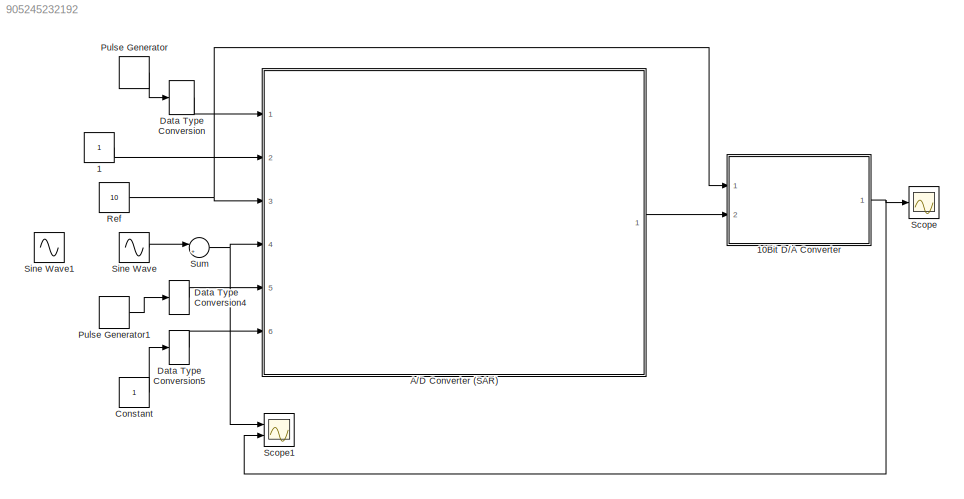
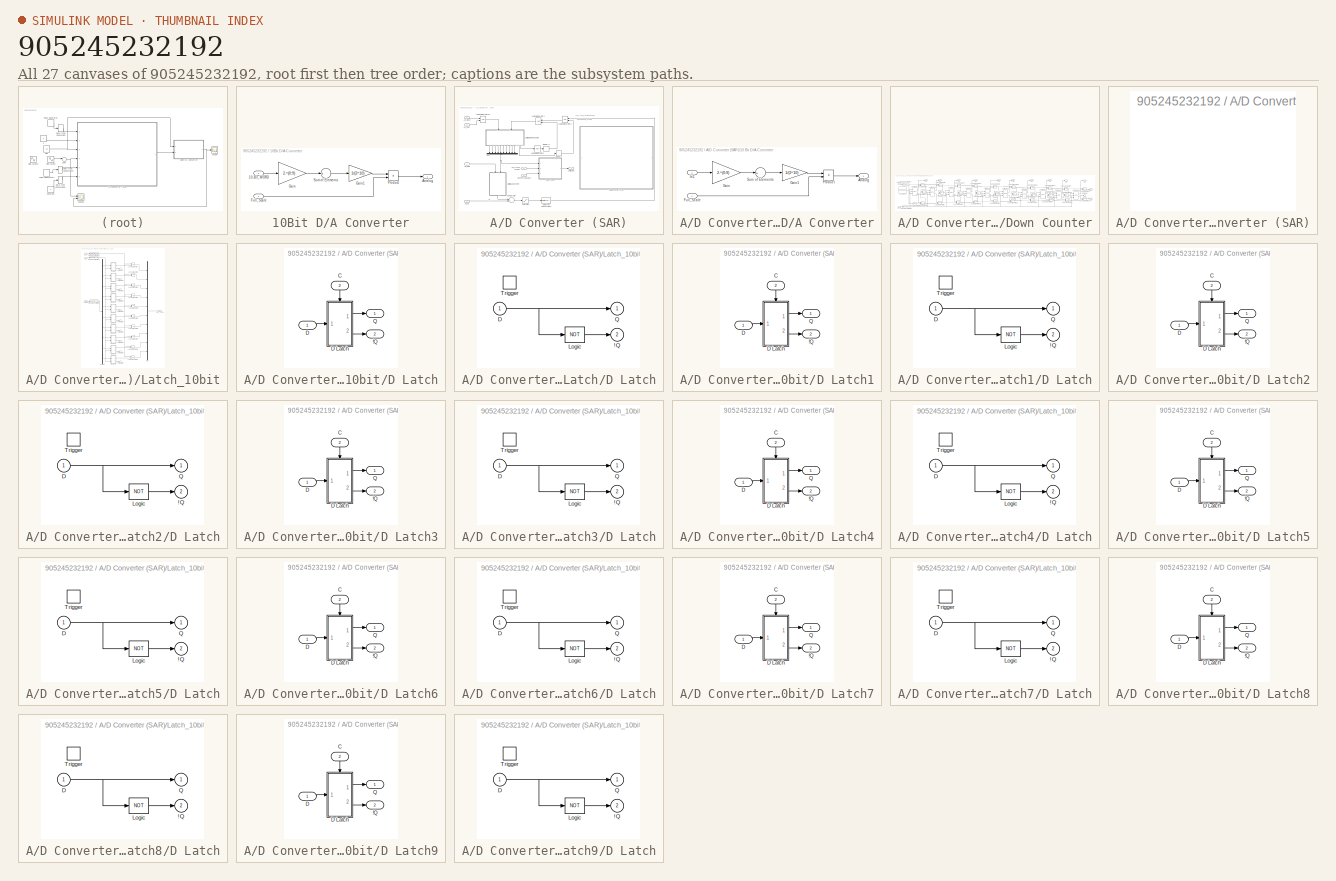
[diagram: thumbnail index - all 27 canvases of the model, root first then tree order]
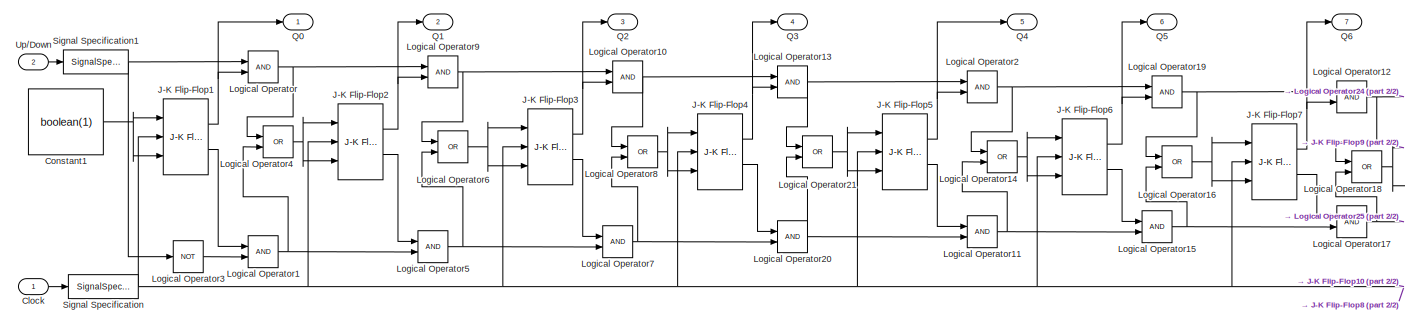
[diagram: A/D Converter (SAR)/10Bit Up/Down Counter - part 1/2, center side, full height]
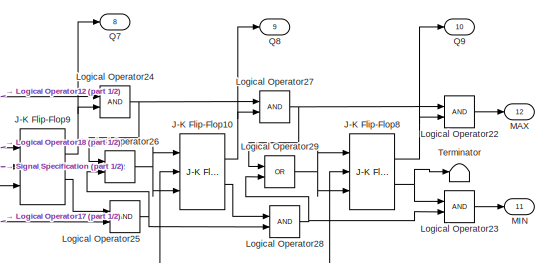
[diagram: A/D Converter (SAR)/10Bit Up/Down Counter - part 2/2, middle right region]
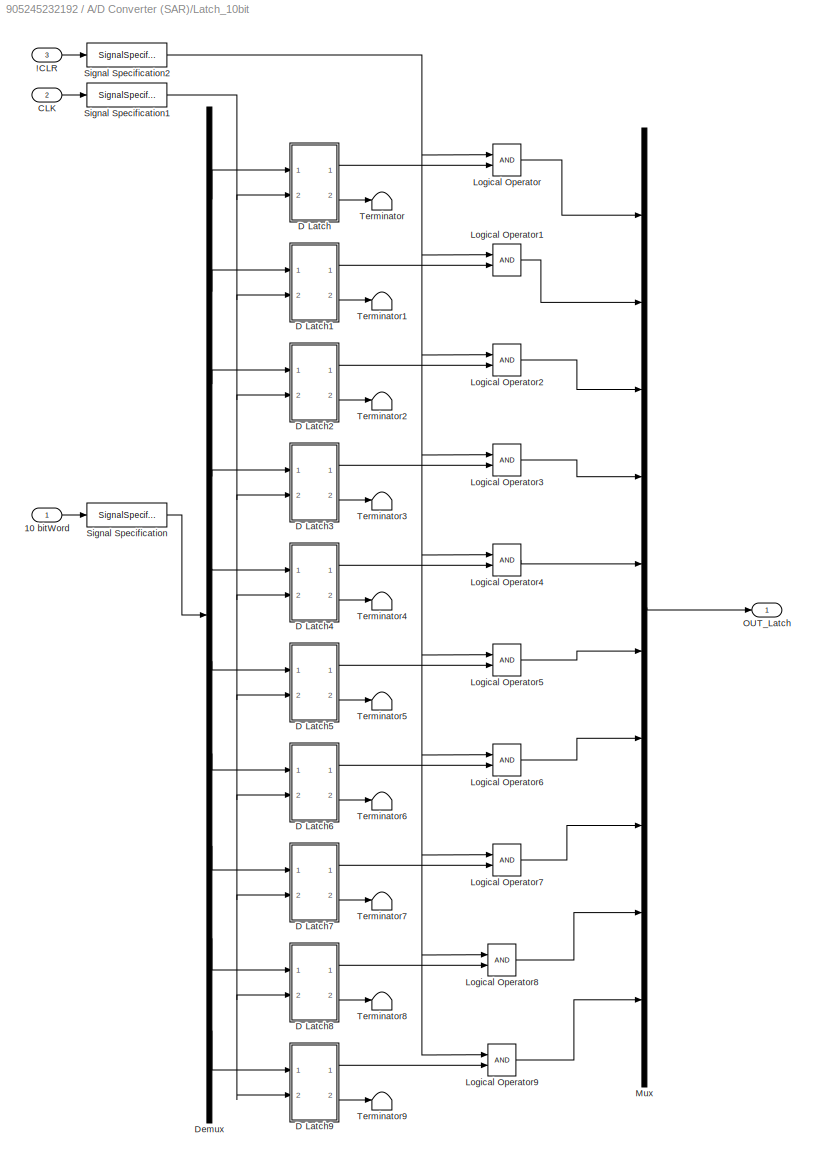
MODEL slx_905245232192
KIND model
CONFIG AbsTol = auto
CONFIG FixedStep = 1/255/2
CONFIG MaxStep = auto
CONFIG MinStep = auto
CONFIG RelTol = 1e-3
CONFIG SampleTimeConstraint = Unconstrained
CONFIG Solver = ode45
CONFIG SolverMode = Auto
CONFIG SolverName = ode45
CONFIG StartTime = 0.0
CONFIG StopTime = inf
BLOCK [Constant] 1
BLOCK [SubSystem] 10Bit D//A Converter
  AncestorBlock = Digital_8bit_Library/8Bit D//A Converter
  Ports = [2, 1]
  RequestExecContextInheritance = off
  Variant = off
BLOCK [Inport] 10Bit D//A Converter/10-Bit_WORD
  IconDisplay = Port number
  Port = 2
BLOCK [Outport] 10Bit D//A Converter/Analog
  IconDisplay = Port number
BLOCK [Inport] 10Bit D//A Converter/Full_Scale
  IconDisplay = Port number
BLOCK [Gain] 10Bit D//A Converter/Gain
  Gain = 2.^(0:9)
  OutDataTypeStr = Inherit: Inherit via internal rule
  ParamDataTypeStr = Inherit: Inherit via internal rule
  SaturateOnIntegerOverflow = off
BLOCK [Gain] 10Bit D//A Converter/Gain1
  Gain = 1/(2^10)
  OutDataTypeStr = Inherit: Inherit via internal rule
  ParamDataTypeStr = Inherit: Inherit via internal rule
  SaturateOnIntegerOverflow = off
BLOCK [Product] 10Bit D//A Converter/Product
  InputSameDT = off
  OutDataTypeStr = Inherit: Inherit via internal rule
  Ports = [2, 1]
  SaturateOnIntegerOverflow = off
BLOCK [Sum] 10Bit D//A Converter/Sum of Elements
  InputSameDT = off
  Inputs = +
  OutDataTypeStr = Inherit: Inherit via internal rule
  Ports = [1, 1]
  SaturateOnIntegerOverflow = off
BLOCK [SubSystem] A//D Converter (SAR)
  Ports = [6, 1]
  RequestExecContextInheritance = off
  Variant = off
BLOCK [SubSystem] A//D Converter (SAR)/10 Bit D//A Converter
  AncestorBlock = Digital_8bit_Library/8Bit D//A Converter
  Ports = [2, 1]
  RequestExecContextInheritance = off
  Variant = off
BLOCK [Outport] A//D Converter (SAR)/10 Bit D//A Converter/Analog
  IconDisplay = Port number
BLOCK [Inport] A//D Converter (SAR)/10 Bit D//A Converter/Full_Scale
  IconDisplay = Port number
BLOCK [Gain] A//D Converter (SAR)/10 Bit D//A Converter/Gain
  Gain = 2.^(0:9)
  OutDataTypeStr = Inherit: Inherit via internal rule
  ParamDataTypeStr = Inherit: Inherit via internal rule
  SaturateOnIntegerOverflow = off
BLOCK [Gain] A//D Converter (SAR)/10 Bit D//A Converter/Gain1
  Gain = 1/(2^10)
  OutDataTypeStr = Inherit: Inherit via internal rule
  ParamDataTypeStr = Inherit: Inherit via internal rule
  SaturateOnIntegerOverflow = off
BLOCK [Inport] A//D Converter (SAR)/10 Bit D//A Converter/In1
  IconDisplay = Port number
  Port = 2
BLOCK [Product] A//D Converter (SAR)/10 Bit D//A Converter/Product
  InputSameDT = off
  OutDataTypeStr = Inherit: Inherit via internal rule
  Ports = [2, 1]
  SaturateOnIntegerOverflow = off
BLOCK [Sum] A//D Converter (SAR)/10 Bit D//A Converter/Sum of Elements
  InputSameDT = off
  Inputs = +
  OutDataTypeStr = Inherit: Inherit via internal rule
  Ports = [1, 1]
  SaturateOnIntegerOverflow = off
BLOCK [SubSystem] A//D Converter (SAR)/10Bit Up//Down Counter
  AncestorBlock = Digital_8bit_Library/8Bit Up//Down \nCounter
  Ports = [2, 12]
  RequestExecContextInheritance = off
  Variant = off
BLOCK [Inport] A//D Converter (SAR)/10Bit Up//Down Counter/Clock
  IconDisplay = Port number
BLOCK [Constant] A//D Converter (SAR)/10Bit Up//Down Counter/Constant1
  Value = boolean(1)
BLOCK [Reference] A//D Converter (SAR)/10Bit Up//Down Counter/J-K Flip-Flop1  REF=simulink_extras/Flip Flops/J-K
Flip-Flop
  Ports = [3, 2]
  SourceBlock = simulink_extras/Flip Flops/J-K\nFlip-Flop
  SourceType = JKFlipFlop
BLOCK [Reference] A//D Converter (SAR)/10Bit Up//Down Counter/J-K Flip-Flop10  REF=simulink_extras/Flip Flops/J-K
Flip-Flop
  Ports = [3, 2]
  SourceBlock = simulink_extras/Flip Flops/J-K\nFlip-Flop
  SourceType = JKFlipFlop
BLOCK [Reference] A//D Converter (SAR)/10Bit Up//Down Counter/J-K Flip-Flop2  REF=simulink_extras/Flip Flops/J-K
Flip-Flop
  Ports = [3, 2]
  SourceBlock = simulink_extras/Flip Flops/J-K\nFlip-Flop
  SourceType = JKFlipFlop
BLOCK [Reference] A//D Converter (SAR)/10Bit Up//Down Counter/J-K Flip-Flop3  REF=simulink_extras/Flip Flops/J-K
Flip-Flop
  Ports = [3, 2]
  SourceBlock = simulink_extras/Flip Flops/J-K\nFlip-Flop
  SourceType = JKFlipFlop
BLOCK [Reference] A//D Converter (SAR)/10Bit Up//Down Counter/J-K Flip-Flop4  REF=simulink_extras/Flip Flops/J-K
Flip-Flop
  Ports = [3, 2]
  SourceBlock = simulink_extras/Flip Flops/J-K\nFlip-Flop
  SourceType = JKFlipFlop
BLOCK [Reference] A//D Converter (SAR)/10Bit Up//Down Counter/J-K Flip-Flop5  REF=simulink_extras/Flip Flops/J-K
Flip-Flop
  Ports = [3, 2]
  SourceBlock = simulink_extras/Flip Flops/J-K\nFlip-Flop
  SourceType = JKFlipFlop
BLOCK [Reference] A//D Converter (SAR)/10Bit Up//Down Counter/J-K Flip-Flop6  REF=simulink_extras/Flip Flops/J-K
Flip-Flop
  Ports = [3, 2]
  SourceBlock = simulink_extras/Flip Flops/J-K\nFlip-Flop
  SourceType = JKFlipFlop
BLOCK [Reference] A//D Converter (SAR)/10Bit Up//Down Counter/J-K Flip-Flop7  REF=simulink_extras/Flip Flops/J-K
Flip-Flop
  Ports = [3, 2]
  SourceBlock = simulink_extras/Flip Flops/J-K\nFlip-Flop
  SourceType = JKFlipFlop
BLOCK [Reference] A//D Converter (SAR)/10Bit Up//Down Counter/J-K Flip-Flop8  REF=simulink_extras/Flip Flops/J-K
Flip-Flop
  Ports = [3, 2]
  SourceBlock = simulink_extras/Flip Flops/J-K\nFlip-Flop
  SourceType = JKFlipFlop
BLOCK [Reference] A//D Converter (SAR)/10Bit Up//Down Counter/J-K Flip-Flop9  REF=simulink_extras/Flip Flops/J-K
Flip-Flop
  Ports = [3, 2]
  SourceBlock = simulink_extras/Flip Flops/J-K\nFlip-Flop
  SourceType = JKFlipFlop
BLOCK [Logic] A//D Converter (SAR)/10Bit Up//Down Counter/Logical Operator
  AllPortsSameDT = off
  IconShape = distinctive
  OutDataTypeStr = boolean
  Ports = [2, 1]
BLOCK [Logic] A//D Converter (SAR)/10Bit Up//Down Counter/Logical Operator1
  AllPortsSameDT = off
  IconShape = distinctive
  OutDataTypeStr = boolean
  Ports = [2, 1]
BLOCK [Logic] A//D Converter (SAR)/10Bit Up//Down Counter/Logical Operator10
  AllPortsSameDT = off
  IconShape = distinctive
  OutDataTypeStr = boolean
  Ports = [2, 1]
BLOCK [Logic] A//D Converter (SAR)/10Bit Up//Down Counter/Logical Operator11
  AllPortsSameDT = off
  IconShape = distinctive
  OutDataTypeStr = boolean
  Ports = [2, 1]
BLOCK [Logic] A//D Converter (SAR)/10Bit Up//Down Counter/Logical Operator12
  AllPortsSameDT = off
  IconShape = distinctive
  OutDataTypeStr = boolean
  Ports = [2, 1]
BLOCK [Logic] A//D Converter (SAR)/10Bit Up//Down Counter/Logical Operator13
  AllPortsSameDT = off
  IconShape = distinctive
  OutDataTypeStr = boolean
  Ports = [2, 1]
BLOCK [Logic] A//D Converter (SAR)/10Bit Up//Down Counter/Logical Operator14
  AllPortsSameDT = off
  IconShape = distinctive
  Operator = OR
  OutDataTypeStr = boolean
  Ports = [2, 1]
BLOCK [Logic] A//D Converter (SAR)/10Bit Up//Down Counter/Logical Operator15
  AllPortsSameDT = off
  IconShape = distinctive
  OutDataTypeStr = boolean
  Ports = [2, 1]
BLOCK [Logic] A//D Converter (SAR)/10Bit Up//Down Counter/Logical Operator16
  AllPortsSameDT = off
  IconShape = distinctive
  Operator = OR
  OutDataTypeStr = boolean
  Ports = [2, 1]
BLOCK [Logic] A//D Converter (SAR)/10Bit Up//Down Counter/Logical Operator17
  AllPortsSameDT = off
  IconShape = distinctive
  OutDataTypeStr = boolean
  Ports = [2, 1]
BLOCK [Logic] A//D Converter (SAR)/10Bit Up//Down Counter/Logical Operator18
  AllPortsSameDT = off
  IconShape = distinctive
  Operator = OR
  OutDataTypeStr = boolean
  Ports = [2, 1]
BLOCK [Logic] A//D Converter (SAR)/10Bit Up//Down Counter/Logical Operator19
  AllPortsSameDT = off
  IconShape = distinctive
  OutDataTypeStr = boolean
  Ports = [2, 1]
BLOCK [Logic] A//D Converter (SAR)/10Bit Up//Down Counter/Logical Operator2
  AllPortsSameDT = off
  IconShape = distinctive
  OutDataTypeStr = boolean
  Ports = [2, 1]
BLOCK [Logic] A//D Converter (SAR)/10Bit Up//Down Counter/Logical Operator20
  AllPortsSameDT = off
  IconShape = distinctive
  OutDataTypeStr = boolean
  Ports = [2, 1]
BLOCK [Logic] A//D Converter (SAR)/10Bit Up//Down Counter/Logical Operator21
  AllPortsSameDT = off
  IconShape = distinctive
  Operator = OR
  OutDataTypeStr = boolean
  Ports = [2, 1]
BLOCK [Logic] A//D Converter (SAR)/10Bit Up//Down Counter/Logical Operator22
  AllPortsSameDT = off
  IconShape = distinctive
  OutDataTypeStr = boolean
  Ports = [2, 1]
BLOCK [Logic] A//D Converter (SAR)/10Bit Up//Down Counter/Logical Operator23
  AllPortsSameDT = off
  IconShape = distinctive
  OutDataTypeStr = boolean
  Ports = [2, 1]
BLOCK [Logic] A//D Converter (SAR)/10Bit Up//Down Counter/Logical Operator24
  AllPortsSameDT = off
  IconShape = distinctive
  OutDataTypeStr = boolean
  Ports = [2, 1]
BLOCK [Logic] A//D Converter (SAR)/10Bit Up//Down Counter/Logical Operator25
  AllPortsSameDT = off
  IconShape = distinctive
  OutDataTypeStr = boolean
  Ports = [2, 1]
BLOCK [Logic] A//D Converter (SAR)/10Bit Up//Down Counter/Logical Operator26
  AllPortsSameDT = off
  IconShape = distinctive
  Operator = OR
  OutDataTypeStr = boolean
  Ports = [2, 1]
BLOCK [Logic] A//D Converter (SAR)/10Bit Up//Down Counter/Logical Operator27
  AllPortsSameDT = off
  IconShape = distinctive
  OutDataTypeStr = boolean
  Ports = [2, 1]
BLOCK [Logic] A//D Converter (SAR)/10Bit Up//Down Counter/Logical Operator28
  AllPortsSameDT = off
  IconShape = distinctive
  OutDataTypeStr = boolean
  Ports = [2, 1]
BLOCK [Logic] A//D Converter (SAR)/10Bit Up//Down Counter/Logical Operator29
  AllPortsSameDT = off
  IconShape = distinctive
  Operator = OR
  OutDataTypeStr = boolean
  Ports = [2, 1]
BLOCK [Logic] A//D Converter (SAR)/10Bit Up//Down Counter/Logical Operator3
  AllPortsSameDT = off
  IconShape = distinctive
  Operator = NOT
  OutDataTypeStr = boolean
  Ports = [1, 1]
BLOCK [Logic] A//D Converter (SAR)/10Bit Up//Down Counter/Logical Operator4
  AllPortsSameDT = off
  IconShape = distinctive
  Operator = OR
  OutDataTypeStr = boolean
  Ports = [2, 1]
BLOCK [Logic] A//D Converter (SAR)/10Bit Up//Down Counter/Logical Operator5
  AllPortsSameDT = off
  IconShape = distinctive
  OutDataTypeStr = boolean
  Ports = [2, 1]
BLOCK [Logic] A//D Converter (SAR)/10Bit Up//Down Counter/Logical Operator6
  AllPortsSameDT = off
  IconShape = distinctive
  Operator = OR
  OutDataTypeStr = boolean
  Ports = [2, 1]
BLOCK [Logic] A//D Converter (SAR)/10Bit Up//Down Counter/Logical Operator7
  AllPortsSameDT = off
  IconShape = distinctive
  OutDataTypeStr = boolean
  Ports = [2, 1]
BLOCK [Logic] A//D Converter (SAR)/10Bit Up//Down Counter/Logical Operator8
  AllPortsSameDT = off
  IconShape = distinctive
  Operator = OR
  OutDataTypeStr = boolean
  Ports = [2, 1]
BLOCK [Logic] A//D Converter (SAR)/10Bit Up//Down Counter/Logical Operator9
  AllPortsSameDT = off
  IconShape = distinctive
  OutDataTypeStr = boolean
  Ports = [2, 1]
BLOCK [Outport] A//D Converter (SAR)/10Bit Up//Down Counter/MAX
  IconDisplay = Port number
  InitialOutput = 0
  Port = 12
BLOCK [Outport] A//D Converter (SAR)/10Bit Up//Down Counter/MIN
  IconDisplay = Port number
  InitialOutput = 0
  Port = 11
BLOCK [Outport] A//D Converter (SAR)/10Bit Up//Down Counter/Q0
  IconDisplay = Port number
  InitialOutput = 0
BLOCK [Outport] A//D Converter (SAR)/10Bit Up//Down Counter/Q1
  IconDisplay = Port number
  InitialOutput = 0
  Port = 2
BLOCK [Outport] A//D Converter (SAR)/10Bit Up//Down Counter/Q2
  IconDisplay = Port number
  InitialOutput = 0
  Port = 3
BLOCK [Outport] A//D Converter (SAR)/10Bit Up//Down Counter/Q3
  IconDisplay = Port number
  InitialOutput = 0
  Port = 4
BLOCK [Outport] A//D Converter (SAR)/10Bit Up//Down Counter/Q4
  IconDisplay = Port number
  InitialOutput = 0
  Port = 5
BLOCK [Outport] A//D Converter (SAR)/10Bit Up//Down Counter/Q5
  IconDisplay = Port number
  InitialOutput = 0
  Port = 6
BLOCK [Outport] A//D Converter (SAR)/10Bit Up//Down Counter/Q6
  IconDisplay = Port number
  InitialOutput = 0
  Port = 7
BLOCK [Outport] A//D Converter (SAR)/10Bit Up//Down Counter/Q7
  IconDisplay = Port number
  InitialOutput = 0
  Port = 8
BLOCK [Outport] A//D Converter (SAR)/10Bit Up//Down Counter/Q8
  IconDisplay = Port number
  InitialOutput = 0
  Port = 9
BLOCK [Outport] A//D Converter (SAR)/10Bit Up//Down Counter/Q9
  IconDisplay = Port number
  InitialOutput = 0
  Port = 10
BLOCK [SignalSpecification] A//D Converter (SAR)/10Bit Up//Down Counter/Signal Specification
  OutDataTypeStr = boolean
BLOCK [SignalSpecification] A//D Converter (SAR)/10Bit Up//Down Counter/Signal Specification1
  OutDataTypeStr = boolean
BLOCK [Terminator] A//D Converter (SAR)/10Bit Up//Down Counter/Terminator
BLOCK [Inport] A//D Converter (SAR)/10Bit Up//Down Counter/Up//Down
  IconDisplay = Port number
  Port = 2
BLOCK [Outport] A//D Converter (SAR)/10Bit_Out
  IconDisplay = Port number
BLOCK [SubSystem] A//D Converter (SAR)/A//D Converter (SAR)
  Ports = []
  RequestExecContextInheritance = off
  Variant = off
BLOCK [Inport] A//D Converter (SAR)/AD_Clock
  IconDisplay = Port number
BLOCK [Inport] A//D Converter (SAR)/AD_IN
  IconDisplay = Port number
  Port = 4
BLOCK [Inport] A//D Converter (SAR)/AD_LATCH_CLOCK
  IconDisplay = Port number
  Port = 5
BLOCK [Inport] A//D Converter (SAR)/AD_REF
  IconDisplay = Port number
  Port = 3
BLOCK [Inport] A//D Converter (SAR)/AD_SOC
  IconDisplay = Port number
  Port = 2
BLOCK [Sum] A//D Converter (SAR)/Comparator
  InputSameDT = off
  Inputs = -+
  OutDataTypeStr = double
  Ports = [2, 1]
  SaturateOnIntegerOverflow = off
BLOCK [DataTypeConversion] A//D Converter (SAR)/Data Type Conversion4
  OutDataTypeStr = boolean
  RndMeth = Floor
  SaturateOnIntegerOverflow = off
BLOCK [SubSystem] A//D Converter (SAR)/Latch_10bit
  AncestorBlock = Digital_8bit_Library/Latch_8bit
  Ports = [3, 1]
  RequestExecContextInheritance = off
  Variant = off
BLOCK [Inport] A//D Converter (SAR)/Latch_10bit/!CLR
  IconDisplay = Port number
  Port = 3
BLOCK [Inport] A//D Converter (SAR)/Latch_10bit/10 bitWord
  IconDisplay = Port number
BLOCK [Inport] A//D Converter (SAR)/Latch_10bit/CLK
  IconDisplay = Port number
  Port = 2
BLOCK [SubSystem] A//D Converter (SAR)/Latch_10bit/D Latch
  Ports = [2, 2]
  RequestExecContextInheritance = off
  Variant = off
BLOCK [Outport] A//D Converter (SAR)/Latch_10bit/D Latch/!Q
  IconDisplay = Port number
  InitialOutput = 1
  Port = 2
BLOCK [Inport] A//D Converter (SAR)/Latch_10bit/D Latch/C
  IconDisplay = Port number
  Port = 2
BLOCK [Inport] A//D Converter (SAR)/Latch_10bit/D Latch/D
  IconDisplay = Port number
BLOCK [SubSystem] A//D Converter (SAR)/Latch_10bit/D Latch/D Latch
  Ports = [1, 2, 0, 1]
  RequestExecContextInheritance = off
  TreatAsAtomicUnit = on
  Variant = off
BLOCK [Outport] A//D Converter (SAR)/Latch_10bit/D Latch/D Latch/!Q
  IconDisplay = Port number
  InitialOutput = 1
  Port = 2
BLOCK [Inport] A//D Converter (SAR)/Latch_10bit/D Latch/D Latch/D
  IconDisplay = Port number
BLOCK [Logic] A//D Converter (SAR)/Latch_10bit/D Latch/D Latch/Logic
  Inputs = 1
  Operator = NOT
  Ports = [1, 1]
BLOCK [Outport] A//D Converter (SAR)/Latch_10bit/D Latch/D Latch/Q
  IconDisplay = Port number
  InitialOutput = 0
BLOCK [TriggerPort] A//D Converter (SAR)/Latch_10bit/D Latch/D Latch/Trigger
  Ports = []
  StatesWhenEnabling = held
  VariantControl = Variant
BLOCK [Outport] A//D Converter (SAR)/Latch_10bit/D Latch/Q
  IconDisplay = Port number
  InitialOutput = 0
BLOCK [SubSystem] A//D Converter (SAR)/Latch_10bit/D Latch1
  Ports = [2, 2]
  RequestExecContextInheritance = off
  Variant = off
BLOCK [Outport] A//D Converter (SAR)/Latch_10bit/D Latch1/!Q
  IconDisplay = Port number
  InitialOutput = 1
  Port = 2
BLOCK [Inport] A//D Converter (SAR)/Latch_10bit/D Latch1/C
  IconDisplay = Port number
  Port = 2
BLOCK [Inport] A//D Converter (SAR)/Latch_10bit/D Latch1/D
  IconDisplay = Port number
BLOCK [SubSystem] A//D Converter (SAR)/Latch_10bit/D Latch1/D Latch
  Ports = [1, 2, 0, 1]
  RequestExecContextInheritance = off
  TreatAsAtomicUnit = on
  Variant = off
BLOCK [Outport] A//D Converter (SAR)/Latch_10bit/D Latch1/D Latch/!Q
  IconDisplay = Port number
  InitialOutput = 1
  Port = 2
BLOCK [Inport] A//D Converter (SAR)/Latch_10bit/D Latch1/D Latch/D
  IconDisplay = Port number
BLOCK [Logic] A//D Converter (SAR)/Latch_10bit/D Latch1/D Latch/Logic
  Inputs = 1
  Operator = NOT
  Ports = [1, 1]
BLOCK [Outport] A//D Converter (SAR)/Latch_10bit/D Latch1/D Latch/Q
  IconDisplay = Port number
  InitialOutput = 0
BLOCK [TriggerPort] A//D Converter (SAR)/Latch_10bit/D Latch1/D Latch/Trigger
  Ports = []
  StatesWhenEnabling = held
  VariantControl = Variant
BLOCK [Outport] A//D Converter (SAR)/Latch_10bit/D Latch1/Q
  IconDisplay = Port number
  InitialOutput = 0
BLOCK [SubSystem] A//D Converter (SAR)/Latch_10bit/D Latch2
  Ports = [2, 2]
  RequestExecContextInheritance = off
  Variant = off
BLOCK [Outport] A//D Converter (SAR)/Latch_10bit/D Latch2/!Q
  IconDisplay = Port number
  InitialOutput = 1
  Port = 2
BLOCK [Inport] A//D Converter (SAR)/Latch_10bit/D Latch2/C
  IconDisplay = Port number
  Port = 2
BLOCK [Inport] A//D Converter (SAR)/Latch_10bit/D Latch2/D
  IconDisplay = Port number
BLOCK [SubSystem] A//D Converter (SAR)/Latch_10bit/D Latch2/D Latch
  Ports = [1, 2, 0, 1]
  RequestExecContextInheritance = off
  TreatAsAtomicUnit = on
  Variant = off
BLOCK [Outport] A//D Converter (SAR)/Latch_10bit/D Latch2/D Latch/!Q
  IconDisplay = Port number
  InitialOutput = 1
  Port = 2
BLOCK [Inport] A//D Converter (SAR)/Latch_10bit/D Latch2/D Latch/D
  IconDisplay = Port number
BLOCK [Logic] A//D Converter (SAR)/Latch_10bit/D Latch2/D Latch/Logic
  Inputs = 1
  Operator = NOT
  Ports = [1, 1]
BLOCK [Outport] A//D Converter (SAR)/Latch_10bit/D Latch2/D Latch/Q
  IconDisplay = Port number
  InitialOutput = 0
BLOCK [TriggerPort] A//D Converter (SAR)/Latch_10bit/D Latch2/D Latch/Trigger
  Ports = []
  StatesWhenEnabling = held
  VariantControl = Variant
BLOCK [Outport] A//D Converter (SAR)/Latch_10bit/D Latch2/Q
  IconDisplay = Port number
  InitialOutput = 0
BLOCK [SubSystem] A//D Converter (SAR)/Latch_10bit/D Latch3
  Ports = [2, 2]
  RequestExecContextInheritance = off
  Variant = off
BLOCK [Outport] A//D Converter (SAR)/Latch_10bit/D Latch3/!Q
  IconDisplay = Port number
  InitialOutput = 1
  Port = 2
BLOCK [Inport] A//D Converter (SAR)/Latch_10bit/D Latch3/C
  IconDisplay = Port number
  Port = 2
BLOCK [Inport] A//D Converter (SAR)/Latch_10bit/D Latch3/D
  IconDisplay = Port number
BLOCK [SubSystem] A//D Converter (SAR)/Latch_10bit/D Latch3/D Latch
  Ports = [1, 2, 0, 1]
  RequestExecContextInheritance = off
  TreatAsAtomicUnit = on
  Variant = off
BLOCK [Outport] A//D Converter (SAR)/Latch_10bit/D Latch3/D Latch/!Q
  IconDisplay = Port number
  InitialOutput = 1
  Port = 2
BLOCK [Inport] A//D Converter (SAR)/Latch_10bit/D Latch3/D Latch/D
  IconDisplay = Port number
BLOCK [Logic] A//D Converter (SAR)/Latch_10bit/D Latch3/D Latch/Logic
  Inputs = 1
  Operator = NOT
  Ports = [1, 1]
BLOCK [Outport] A//D Converter (SAR)/Latch_10bit/D Latch3/D Latch/Q
  IconDisplay = Port number
  InitialOutput = 0
BLOCK [TriggerPort] A//D Converter (SAR)/Latch_10bit/D Latch3/D Latch/Trigger
  Ports = []
  StatesWhenEnabling = held
  VariantControl = Variant
BLOCK [Outport] A//D Converter (SAR)/Latch_10bit/D Latch3/Q
  IconDisplay = Port number
  InitialOutput = 0
BLOCK [SubSystem] A//D Converter (SAR)/Latch_10bit/D Latch4
  Ports = [2, 2]
  RequestExecContextInheritance = off
  Variant = off
BLOCK [Outport] A//D Converter (SAR)/Latch_10bit/D Latch4/!Q
  IconDisplay = Port number
  InitialOutput = 1
  Port = 2
BLOCK [Inport] A//D Converter (SAR)/Latch_10bit/D Latch4/C
  IconDisplay = Port number
  Port = 2
BLOCK [Inport] A//D Converter (SAR)/Latch_10bit/D Latch4/D
  IconDisplay = Port number
BLOCK [SubSystem] A//D Converter (SAR)/Latch_10bit/D Latch4/D Latch
  Ports = [1, 2, 0, 1]
  RequestExecContextInheritance = off
  TreatAsAtomicUnit = on
  Variant = off
BLOCK [Outport] A//D Converter (SAR)/Latch_10bit/D Latch4/D Latch/!Q
  IconDisplay = Port number
  InitialOutput = 1
  Port = 2
BLOCK [Inport] A//D Converter (SAR)/Latch_10bit/D Latch4/D Latch/D
  IconDisplay = Port number
BLOCK [Logic] A//D Converter (SAR)/Latch_10bit/D Latch4/D Latch/Logic
  Inputs = 1
  Operator = NOT
  Ports = [1, 1]
BLOCK [Outport] A//D Converter (SAR)/Latch_10bit/D Latch4/D Latch/Q
  IconDisplay = Port number
  InitialOutput = 0
BLOCK [TriggerPort] A//D Converter (SAR)/Latch_10bit/D Latch4/D Latch/Trigger
  Ports = []
  StatesWhenEnabling = held
  VariantControl = Variant
BLOCK [Outport] A//D Converter (SAR)/Latch_10bit/D Latch4/Q
  IconDisplay = Port number
  InitialOutput = 0
BLOCK [SubSystem] A//D Converter (SAR)/Latch_10bit/D Latch5
  Ports = [2, 2]
  RequestExecContextInheritance = off
  Variant = off
BLOCK [Outport] A//D Converter (SAR)/Latch_10bit/D Latch5/!Q
  IconDisplay = Port number
  InitialOutput = 1
  Port = 2
BLOCK [Inport] A//D Converter (SAR)/Latch_10bit/D Latch5/C
  IconDisplay = Port number
  Port = 2
BLOCK [Inport] A//D Converter (SAR)/Latch_10bit/D Latch5/D
  IconDisplay = Port number
BLOCK [SubSystem] A//D Converter (SAR)/Latch_10bit/D Latch5/D Latch
  Ports = [1, 2, 0, 1]
  RequestExecContextInheritance = off
  TreatAsAtomicUnit = on
  Variant = off
BLOCK [Outport] A//D Converter (SAR)/Latch_10bit/D Latch5/D Latch/!Q
  IconDisplay = Port number
  InitialOutput = 1
  Port = 2
BLOCK [Inport] A//D Converter (SAR)/Latch_10bit/D Latch5/D Latch/D
  IconDisplay = Port number
BLOCK [Logic] A//D Converter (SAR)/Latch_10bit/D Latch5/D Latch/Logic
  Inputs = 1
  Operator = NOT
  Ports = [1, 1]
BLOCK [Outport] A//D Converter (SAR)/Latch_10bit/D Latch5/D Latch/Q
  IconDisplay = Port number
  InitialOutput = 0
BLOCK [TriggerPort] A//D Converter (SAR)/Latch_10bit/D Latch5/D Latch/Trigger
  Ports = []
  StatesWhenEnabling = held
  VariantControl = Variant
BLOCK [Outport] A//D Converter (SAR)/Latch_10bit/D Latch5/Q
  IconDisplay = Port number
  InitialOutput = 0
BLOCK [SubSystem] A//D Converter (SAR)/Latch_10bit/D Latch6
  Ports = [2, 2]
  RequestExecContextInheritance = off
  Variant = off
BLOCK [Outport] A//D Converter (SAR)/Latch_10bit/D Latch6/!Q
  IconDisplay = Port number
  InitialOutput = 1
  Port = 2
BLOCK [Inport] A//D Converter (SAR)/Latch_10bit/D Latch6/C
  IconDisplay = Port number
  Port = 2
BLOCK [Inport] A//D Converter (SAR)/Latch_10bit/D Latch6/D
  IconDisplay = Port number
BLOCK [SubSystem] A//D Converter (SAR)/Latch_10bit/D Latch6/D Latch
  Ports = [1, 2, 0, 1]
  RequestExecContextInheritance = off
  TreatAsAtomicUnit = on
  Variant = off
BLOCK [Outport] A//D Converter (SAR)/Latch_10bit/D Latch6/D Latch/!Q
  IconDisplay = Port number
  InitialOutput = 1
  Port = 2
BLOCK [Inport] A//D Converter (SAR)/Latch_10bit/D Latch6/D Latch/D
  IconDisplay = Port number
BLOCK [Logic] A//D Converter (SAR)/Latch_10bit/D Latch6/D Latch/Logic
  Inputs = 1
  Operator = NOT
  Ports = [1, 1]
BLOCK [Outport] A//D Converter (SAR)/Latch_10bit/D Latch6/D Latch/Q
  IconDisplay = Port number
  InitialOutput = 0
BLOCK [TriggerPort] A//D Converter (SAR)/Latch_10bit/D Latch6/D Latch/Trigger
  Ports = []
  StatesWhenEnabling = held
  VariantControl = Variant
BLOCK [Outport] A//D Converter (SAR)/Latch_10bit/D Latch6/Q
  IconDisplay = Port number
  InitialOutput = 0
BLOCK [SubSystem] A//D Converter (SAR)/Latch_10bit/D Latch7
  Ports = [2, 2]
  RequestExecContextInheritance = off
  Variant = off
BLOCK [Outport] A//D Converter (SAR)/Latch_10bit/D Latch7/!Q
  IconDisplay = Port number
  InitialOutput = 1
  Port = 2
BLOCK [Inport] A//D Converter (SAR)/Latch_10bit/D Latch7/C
  IconDisplay = Port number
  Port = 2
BLOCK [Inport] A//D Converter (SAR)/Latch_10bit/D Latch7/D
  IconDisplay = Port number
BLOCK [SubSystem] A//D Converter (SAR)/Latch_10bit/D Latch7/D Latch
  Ports = [1, 2, 0, 1]
  RequestExecContextInheritance = off
  TreatAsAtomicUnit = on
  Variant = off
BLOCK [Outport] A//D Converter (SAR)/Latch_10bit/D Latch7/D Latch/!Q
  IconDisplay = Port number
  InitialOutput = 1
  Port = 2
BLOCK [Inport] A//D Converter (SAR)/Latch_10bit/D Latch7/D Latch/D
  IconDisplay = Port number
BLOCK [Logic] A//D Converter (SAR)/Latch_10bit/D Latch7/D Latch/Logic
  Inputs = 1
  Operator = NOT
  Ports = [1, 1]
BLOCK [Outport] A//D Converter (SAR)/Latch_10bit/D Latch7/D Latch/Q
  IconDisplay = Port number
  InitialOutput = 0
BLOCK [TriggerPort] A//D Converter (SAR)/Latch_10bit/D Latch7/D Latch/Trigger
  Ports = []
  StatesWhenEnabling = held
  VariantControl = Variant
BLOCK [Outport] A//D Converter (SAR)/Latch_10bit/D Latch7/Q
  IconDisplay = Port number
  InitialOutput = 0
BLOCK [SubSystem] A//D Converter (SAR)/Latch_10bit/D Latch8
  Ports = [2, 2]
  RequestExecContextInheritance = off
  Variant = off
BLOCK [Outport] A//D Converter (SAR)/Latch_10bit/D Latch8/!Q
  IconDisplay = Port number
  InitialOutput = 1
  Port = 2
BLOCK [Inport] A//D Converter (SAR)/Latch_10bit/D Latch8/C
  IconDisplay = Port number
  Port = 2
BLOCK [Inport] A//D Converter (SAR)/Latch_10bit/D Latch8/D
  IconDisplay = Port number
BLOCK [SubSystem] A//D Converter (SAR)/Latch_10bit/D Latch8/D Latch
  Ports = [1, 2, 0, 1]
  RequestExecContextInheritance = off
  TreatAsAtomicUnit = on
  Variant = off
BLOCK [Outport] A//D Converter (SAR)/Latch_10bit/D Latch8/D Latch/!Q
  IconDisplay = Port number
  InitialOutput = 1
  Port = 2
BLOCK [Inport] A//D Converter (SAR)/Latch_10bit/D Latch8/D Latch/D
  IconDisplay = Port number
BLOCK [Logic] A//D Converter (SAR)/Latch_10bit/D Latch8/D Latch/Logic
  Inputs = 1
  Operator = NOT
  Ports = [1, 1]
BLOCK [Outport] A//D Converter (SAR)/Latch_10bit/D Latch8/D Latch/Q
  IconDisplay = Port number
  InitialOutput = 0
BLOCK [TriggerPort] A//D Converter (SAR)/Latch_10bit/D Latch8/D Latch/Trigger
  Ports = []
  StatesWhenEnabling = held
  VariantControl = Variant
BLOCK [Outport] A//D Converter (SAR)/Latch_10bit/D Latch8/Q
  IconDisplay = Port number
  InitialOutput = 0
BLOCK [SubSystem] A//D Converter (SAR)/Latch_10bit/D Latch9
  Ports = [2, 2]
  RequestExecContextInheritance = off
  Variant = off
BLOCK [Outport] A//D Converter (SAR)/Latch_10bit/D Latch9/!Q
  IconDisplay = Port number
  InitialOutput = 1
  Port = 2
BLOCK [Inport] A//D Converter (SAR)/Latch_10bit/D Latch9/C
  IconDisplay = Port number
  Port = 2
BLOCK [Inport] A//D Converter (SAR)/Latch_10bit/D Latch9/D
  IconDisplay = Port number
BLOCK [SubSystem] A//D Converter (SAR)/Latch_10bit/D Latch9/D Latch
  Ports = [1, 2, 0, 1]
  RequestExecContextInheritance = off
  TreatAsAtomicUnit = on
  Variant = off
BLOCK [Outport] A//D Converter (SAR)/Latch_10bit/D Latch9/D Latch/!Q
  IconDisplay = Port number
  InitialOutput = 1
  Port = 2
BLOCK [Inport] A//D Converter (SAR)/Latch_10bit/D Latch9/D Latch/D
  IconDisplay = Port number
BLOCK [Logic] A//D Converter (SAR)/Latch_10bit/D Latch9/D Latch/Logic
  Inputs = 1
  Operator = NOT
  Ports = [1, 1]
BLOCK [Outport] A//D Converter (SAR)/Latch_10bit/D Latch9/D Latch/Q
  IconDisplay = Port number
  InitialOutput = 0
BLOCK [TriggerPort] A//D Converter (SAR)/Latch_10bit/D Latch9/D Latch/Trigger
  Ports = []
  StatesWhenEnabling = held
  VariantControl = Variant
BLOCK [Outport] A//D Converter (SAR)/Latch_10bit/D Latch9/Q
  IconDisplay = Port number
  InitialOutput = 0
BLOCK [Demux] A//D Converter (SAR)/Latch_10bit/Demux
  DisplayOption = bar
  Outputs = 10
  Ports = [1, 10]
BLOCK [Logic] A//D Converter (SAR)/Latch_10bit/Logical Operator
  AllPortsSameDT = off
  IconShape = distinctive
  OutDataTypeStr = boolean
  Ports = [2, 1]
BLOCK [Logic] A//D Converter (SAR)/Latch_10bit/Logical Operator1
  AllPortsSameDT = off
  IconShape = distinctive
  OutDataTypeStr = boolean
  Ports = [2, 1]
BLOCK [Logic] A//D Converter (SAR)/Latch_10bit/Logical Operator2
  AllPortsSameDT = off
  IconShape = distinctive
  OutDataTypeStr = boolean
  Ports = [2, 1]
BLOCK [Logic] A//D Converter (SAR)/Latch_10bit/Logical Operator3
  AllPortsSameDT = off
  IconShape = distinctive
  OutDataTypeStr = boolean
  Ports = [2, 1]
BLOCK [Logic] A//D Converter (SAR)/Latch_10bit/Logical Operator4
  AllPortsSameDT = off
  IconShape = distinctive
  OutDataTypeStr = boolean
  Ports = [2, 1]
BLOCK [Logic] A//D Converter (SAR)/Latch_10bit/Logical Operator5
  AllPortsSameDT = off
  IconShape = distinctive
  OutDataTypeStr = boolean
  Ports = [2, 1]
BLOCK [Logic] A//D Converter (SAR)/Latch_10bit/Logical Operator6
  AllPortsSameDT = off
  IconShape = distinctive
  OutDataTypeStr = boolean
  Ports = [2, 1]
BLOCK [Logic] A//D Converter (SAR)/Latch_10bit/Logical Operator7
  AllPortsSameDT = off
  IconShape = distinctive
  OutDataTypeStr = boolean
  Ports = [2, 1]
BLOCK [Logic] A//D Converter (SAR)/Latch_10bit/Logical Operator8
  AllPortsSameDT = off
  IconShape = distinctive
  OutDataTypeStr = boolean
  Ports = [2, 1]
BLOCK [Logic] A//D Converter (SAR)/Latch_10bit/Logical Operator9
  AllPortsSameDT = off
  IconShape = distinctive
  OutDataTypeStr = boolean
  Ports = [2, 1]
BLOCK [Mux] A//D Converter (SAR)/Latch_10bit/Mux
  DisplayOption = bar
  Inputs = 10
  Ports = [10, 1]
BLOCK [Outport] A//D Converter (SAR)/Latch_10bit/OUT_Latch
  IconDisplay = Port number
BLOCK [SignalSpecification] A//D Converter (SAR)/Latch_10bit/Signal Specification
  OutDataTypeStr = boolean
BLOCK [SignalSpecification] A//D Converter (SAR)/Latch_10bit/Signal Specification1
  OutDataTypeStr = boolean
BLOCK [SignalSpecification] A//D Converter (SAR)/Latch_10bit/Signal Specification2
  OutDataTypeStr = boolean
BLOCK [Terminator] A//D Converter (SAR)/Latch_10bit/Terminator
BLOCK [Terminator] A//D Converter (SAR)/Latch_10bit/Terminator1
BLOCK [Terminator] A//D Converter (SAR)/Latch_10bit/Terminator2
BLOCK [Terminator] A//D Converter (SAR)/Latch_10bit/Terminator3
BLOCK [Terminator] A//D Converter (SAR)/Latch_10bit/Terminator4
BLOCK [Terminator] A//D Converter (SAR)/Latch_10bit/Terminator5
BLOCK [Terminator] A//D Converter (SAR)/Latch_10bit/Terminator6
BLOCK [Terminator] A//D Converter (SAR)/Latch_10bit/Terminator7
BLOCK [Terminator] A//D Converter (SAR)/Latch_10bit/Terminator8
BLOCK [Terminator] A//D Converter (SAR)/Latch_10bit/Terminator9
BLOCK [Logic] A//D Converter (SAR)/Logical Operator1
  AllPortsSameDT = off
  IconShape = distinctive
  OutDataTypeStr = boolean
  Ports = [2, 1]
BLOCK [Logic] A//D Converter (SAR)/Logical Operator2
  AllPortsSameDT = off
  IconShape = distinctive
  Operator = NOT
  OutDataTypeStr = boolean
  Ports = [1, 1]
BLOCK [Logic] A//D Converter (SAR)/Logical Operator20
  AllPortsSameDT = off
  IconShape = distinctive
  OutDataTypeStr = boolean
  Ports = [2, 1]
BLOCK [Logic] A//D Converter (SAR)/Logical Operator3
  AllPortsSameDT = off
  IconShape = distinctive
  Operator = OR
  OutDataTypeStr = boolean
  Ports = [2, 1]
BLOCK [Memory] A//D Converter (SAR)/Memory
BLOCK [Memory] A//D Converter (SAR)/Memory1
BLOCK [Mux] A//D Converter (SAR)/Mux
  DisplayOption = bar
  Inputs = 10
  Ports = [10, 1]
BLOCK [Inport] A//D Converter (SAR)/OUTPUT_ENABLE
  IconDisplay = Port number
  Port = 6
BLOCK [Saturate] A//D Converter (SAR)/Saturation
  InputPortMap = u0
  LowerLimit = 0
  Ports = [1, 1]
  UpperLimit = 1
BLOCK [Constant] Constant
BLOCK [DataTypeConversion] Data Type Conversion
  OutDataTypeStr = boolean
  RndMeth = Floor
  SaturateOnIntegerOverflow = off
BLOCK [DataTypeConversion] Data Type Conversion4
  OutDataTypeStr = boolean
  RndMeth = Floor
  SaturateOnIntegerOverflow = off
BLOCK [DataTypeConversion] Data Type Conversion5
  OutDataTypeStr = boolean
  RndMeth = Floor
  SaturateOnIntegerOverflow = off
BLOCK [DiscretePulseGenerator] Pulse Generator
  Period = 1/1023
  Ports = [0, 1]
  PulseType = Time based
  PulseWidth = 50
BLOCK [DiscretePulseGenerator] Pulse Generator1
  Period = 0.001
  Ports = [0, 1]
  PulseType = Time based
  PulseWidth = 50
BLOCK [Constant] Ref
  Value = 10
BLOCK [Scope] Scope
  Ports = [1]
  ScopeSpecificationString = Simulink.scopes.TimeScopeBlockCfg('CurrentConfiguration', extmgr.ConfigurationSet(extmgr.Configuration('Core','General UI',true),extmgr.Configuration('Core','Source UI',true),extmgr.Configuration('Sources','WiredSimulink',true),extmgr.Configuration('Visuals','Time Domain',true,'SerializedDisplays',{struct('MinYLimReal','-0.28564','MaxYLimReal','2.5708','YLabelReal','','MinYLimMag','0.00000','MaxYL...<+1413ch>
BLOCK [Scope] Scope1
  NumInputPorts = 2
  Ports = [2]
  ScopeSpecificationString = Simulink.scopes.TimeScopeBlockCfg('CurrentConfiguration', extmgr.ConfigurationSet(extmgr.Configuration('Core','General UI',true),extmgr.Configuration('Core','Source UI',true),extmgr.Configuration('Sources','WiredSimulink',true,'DataLoggingVariableName','ScopeData1'),extmgr.Configuration('Visuals','Time Domain',true,'SerializedDisplays',{struct('MinYLimReal','-1.25','MaxYLimReal','11.25','YLabelRea...<+1445ch>
BLOCK [Sin] Sine Wave
  Amplitude = 5
  Bias = 5
  Ports = [0, 1]
  SampleTime = 0
BLOCK [Sin] Sine Wave1
  Amplitude = 2
  Bias = 5
  Frequency = 4
  Ports = [0, 1]
  SampleTime = 0
BLOCK [Sum] Sum
  IconShape = round
  InputSameDT = off
  Inputs = |++
  OutDataTypeStr = Inherit: Inherit via internal rule
  Ports = [2, 1]
  SaturateOnIntegerOverflow = off
ANNOTATION A//D Converter (SAR): AD_LATCH_CLOCK should be 1/255 of AD_CLOCK
NET 10Bit D//A Converter:1 -> Scope1:2, Scope:1
LINE 1:1 -> A//D Converter (SAR):2
LINE A//D Converter (SAR)/10 Bit D//A Converter:1 -> A//D Converter (SAR)/Comparator:1
LINE A//D Converter (SAR)/10Bit Up//Down Counter:1 -> A//D Converter (SAR)/Mux:1
LINE A//D Converter (SAR)/10Bit Up//Down Counter:10 -> A//D Converter (SAR)/Mux:10
LINE A//D Converter (SAR)/10Bit Up//Down Counter:11 -> A//D Converter (SAR)/Memory:1
LINE A//D Converter (SAR)/10Bit Up//Down Counter:12 -> A//D Converter (SAR)/Logical Operator2:1
LINE A//D Converter (SAR)/10Bit Up//Down Counter:2 -> A//D Converter (SAR)/Mux:2
LINE A//D Converter (SAR)/10Bit Up//Down Counter:3 -> A//D Converter (SAR)/Mux:3
LINE A//D Converter (SAR)/10Bit Up//Down Counter:4 -> A//D Converter (SAR)/Mux:4
LINE A//D Converter (SAR)/10Bit Up//Down Counter:5 -> A//D Converter (SAR)/Mux:5
LINE A//D Converter (SAR)/10Bit Up//Down Counter:6 -> A//D Converter (SAR)/Mux:6
LINE A//D Converter (SAR)/10Bit Up//Down Counter:7 -> A//D Converter (SAR)/Mux:7
LINE A//D Converter (SAR)/10Bit Up//Down Counter:8 -> A//D Converter (SAR)/Mux:8
LINE A//D Converter (SAR)/10Bit Up//Down Counter:9 -> A//D Converter (SAR)/Mux:9
LINE A//D Converter (SAR)/AD_Clock:1 -> A//D Converter (SAR)/Logical Operator20:1
LINE A//D Converter (SAR)/AD_IN:1 -> A//D Converter (SAR)/Comparator:2
LINE A//D Converter (SAR)/AD_LATCH_CLOCK:1 -> A//D Converter (SAR)/Latch_10bit:2
LINE A//D Converter (SAR)/AD_REF:1 -> A//D Converter (SAR)/10 Bit D//A Converter:1
LINE A//D Converter (SAR)/AD_SOC:1 -> A//D Converter (SAR)/Logical Operator20:2
LINE A//D Converter (SAR)/Comparator:1 -> A//D Converter (SAR)/Saturation:1
LINE A//D Converter (SAR)/Data Type Conversion4:1 -> A//D Converter (SAR)/Logical Operator3:1
LINE A//D Converter (SAR)/Latch_10bit:1 -> A//D Converter (SAR)/10Bit_Out:1
LINE A//D Converter (SAR)/Logical Operator1:1 -> A//D Converter (SAR)/10Bit Up//Down Counter:2
LINE A//D Converter (SAR)/Logical Operator20:1 -> A//D Converter (SAR)/10Bit Up//Down Counter:1
LINE A//D Converter (SAR)/Logical Operator2:1 -> A//D Converter (SAR)/Memory1:1
LINE A//D Converter (SAR)/Logical Operator3:1 -> A//D Converter (SAR)/Logical Operator1:1
LINE A//D Converter (SAR)/Memory1:1 -> A//D Converter (SAR)/Logical Operator1:2
LINE A//D Converter (SAR)/Memory:1 -> A//D Converter (SAR)/Logical Operator3:2
NET A//D Converter (SAR)/Mux:1 -> A//D Converter (SAR)/10 Bit D//A Converter:2, A//D Converter (SAR)/Latch_10bit:1
LINE A//D Converter (SAR)/OUTPUT_ENABLE:1 -> A//D Converter (SAR)/Latch_10bit:3
LINE A//D Converter (SAR)/Saturation:1 -> A//D Converter (SAR)/Data Type Conversion4:1
LINE A//D Converter (SAR):1 -> 10Bit D//A Converter:2
LINE Constant:1 -> Data Type Conversion5:1
LINE Data Type Conversion4:1 -> A//D Converter (SAR):5
LINE Data Type Conversion5:1 -> A//D Converter (SAR):6
LINE Data Type Conversion:1 -> A//D Converter (SAR):1
LINE Pulse Generator1:1 -> Data Type Conversion4:1
LINE Pulse Generator:1 -> Data Type Conversion:1
NET Ref:1 -> 10Bit D//A Converter:1, A//D Converter (SAR):3
LINE Sine Wave:1 -> Sum:1
NET Sum:1 -> A//D Converter (SAR):4, Scope1:1
note: NET lines group one-source signal fan-out (src -> all destinations, sorted); 1:1 wires keep LINE
